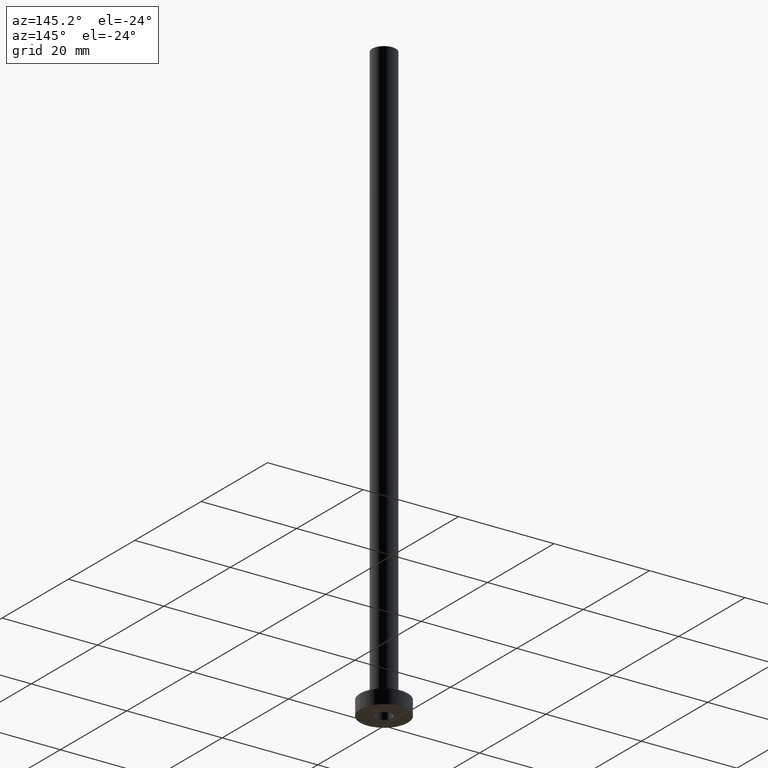
[diagram: clean part render]
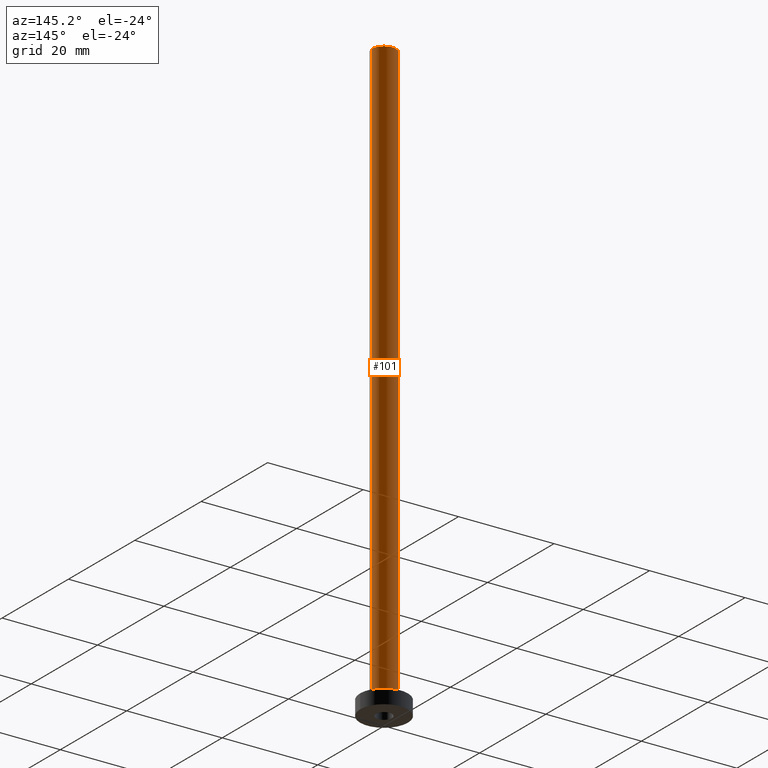
[diagram: same view with one face highlighted and labeled with its STEP entity id]
A machine part, auxiliary view. The second image highlights one B-rep face of the part: STEP entity #101.
In plain terms, the highlighted cylindrical surface (edge-blend (fillet) strip) has radius 2.5 mm, axis along (-0, -0, -1).
Its self-contained STEP definition (entity closure, byte-faithful):
#17 = DIRECTION ( 'NONE',  ( 1.000000000000000000, 0.000000000000000000, 0.000000000000000000 ) ) ;
#28 = CIRCLE ( 'NONE', #211, 2.500000000000000000 ) ;
#32 = DIRECTION ( 'NONE',  ( -0.000000000000000000, -0.000000000000000000, -1.000000000000000000 ) ) ;
#34 = CARTESIAN_POINT ( 'NONE',  ( -2.500000000000000000, 0.000000000000000000, 3.299999999999997158 ) ) ;
#38 = DIRECTION ( 'NONE',  ( -0.000000000000000000, -0.000000000000000000, -1.000000000000000000 ) ) ;
#52 = VERTEX_POINT ( 'NONE', #176 ) ;
#79 = CARTESIAN_POINT ( 'NONE',  ( 0.000000000000000000, 0.000000000000000000, 3.299999999999997158 ) ) ;
#80 = EDGE_CURVE ( 'NONE', #306, #132, #109, .T. ) ;
#94 = VECTOR ( 'NONE', #38, 1000.000000000000000 ) ;
#97 = EDGE_CURVE ( 'NONE', #443, #52, #284, .T. ) ;
#101 = ADVANCED_FACE ( 'NONE', ( #324 ), #354, .T. ) ;
#109 = LINE ( 'NONE', #397, #280 ) ;
#132 = VERTEX_POINT ( 'NONE', #34 ) ;
#143 = DIRECTION ( 'NONE',  ( -0.000000000000000000, -0.000000000000000000, -1.000000000000000000 ) ) ;
#152 = DIRECTION ( 'NONE',  ( 0.000000000000000000, 0.000000000000000000, 1.000000000000000000 ) ) ;
#173 = CARTESIAN_POINT ( 'NONE',  ( 2.500000000000000000, 3.061616997868382648E-16, 125.0000000000000000 ) ) ;
#176 = CARTESIAN_POINT ( 'NONE',  ( 2.500000000000000000, 3.061616997868382648E-16, 3.299999999999997158 ) ) ;
#200 = EDGE_LOOP ( 'NONE', ( #376, #449, #274, #398 ) ) ;
#211 = AXIS2_PLACEMENT_3D ( 'NONE', #79, #152, #262 ) ;
#220 = EDGE_CURVE ( 'NONE', #443, #306, #430, .T. ) ;
#237 = AXIS2_PLACEMENT_3D ( 'NONE', #248, #32, #321 ) ;
#248 = CARTESIAN_POINT ( 'NONE',  ( 0.000000000000000000, 0.000000000000000000, 125.0000000000000000 ) ) ;
#262 = DIRECTION ( 'NONE',  ( 1.000000000000000000, 0.000000000000000000, 0.000000000000000000 ) ) ;
#274 = ORIENTED_EDGE ( 'NONE', *, *, #281, .T. ) ;
#280 = VECTOR ( 'NONE', #143, 1000.000000000000000 ) ;
#281 = EDGE_CURVE ( 'NONE', #52, #132, #28, .T. ) ;
#284 = LINE ( 'NONE', #173, #94 ) ;
#306 = VERTEX_POINT ( 'NONE', #461 ) ;
#321 = DIRECTION ( 'NONE',  ( -1.000000000000000000, 0.000000000000000000, 0.000000000000000000 ) ) ;
#324 = FACE_OUTER_BOUND ( 'NONE', #200, .T. ) ;
#354 = CYLINDRICAL_SURFACE ( 'NONE', #237, 2.500000000000000000 ) ;
#376 = ORIENTED_EDGE ( 'NONE', *, *, #220, .F. ) ;
#397 = CARTESIAN_POINT ( 'NONE',  ( -2.500000000000000000, 0.000000000000000000, 125.0000000000000000 ) ) ;
#398 = ORIENTED_EDGE ( 'NONE', *, *, #80, .F. ) ;
#402 = DIRECTION ( 'NONE',  ( 0.000000000000000000, 0.000000000000000000, 1.000000000000000000 ) ) ;
#405 = AXIS2_PLACEMENT_3D ( 'NONE', #410, #402, #17 ) ;
#410 = CARTESIAN_POINT ( 'NONE',  ( 0.000000000000000000, 0.000000000000000000, 125.0000000000000000 ) ) ;
#412 = CARTESIAN_POINT ( 'NONE',  ( 2.500000000000000000, 3.061616997868382648E-16, 125.0000000000000000 ) ) ;
#430 = CIRCLE ( 'NONE', #405, 2.500000000000000000 ) ;
#443 = VERTEX_POINT ( 'NONE', #412 ) ;
#449 = ORIENTED_EDGE ( 'NONE', *, *, #97, .T. ) ;
#461 = CARTESIAN_POINT ( 'NONE',  ( -2.500000000000000000, 0.000000000000000000, 125.0000000000000000 ) ) ;